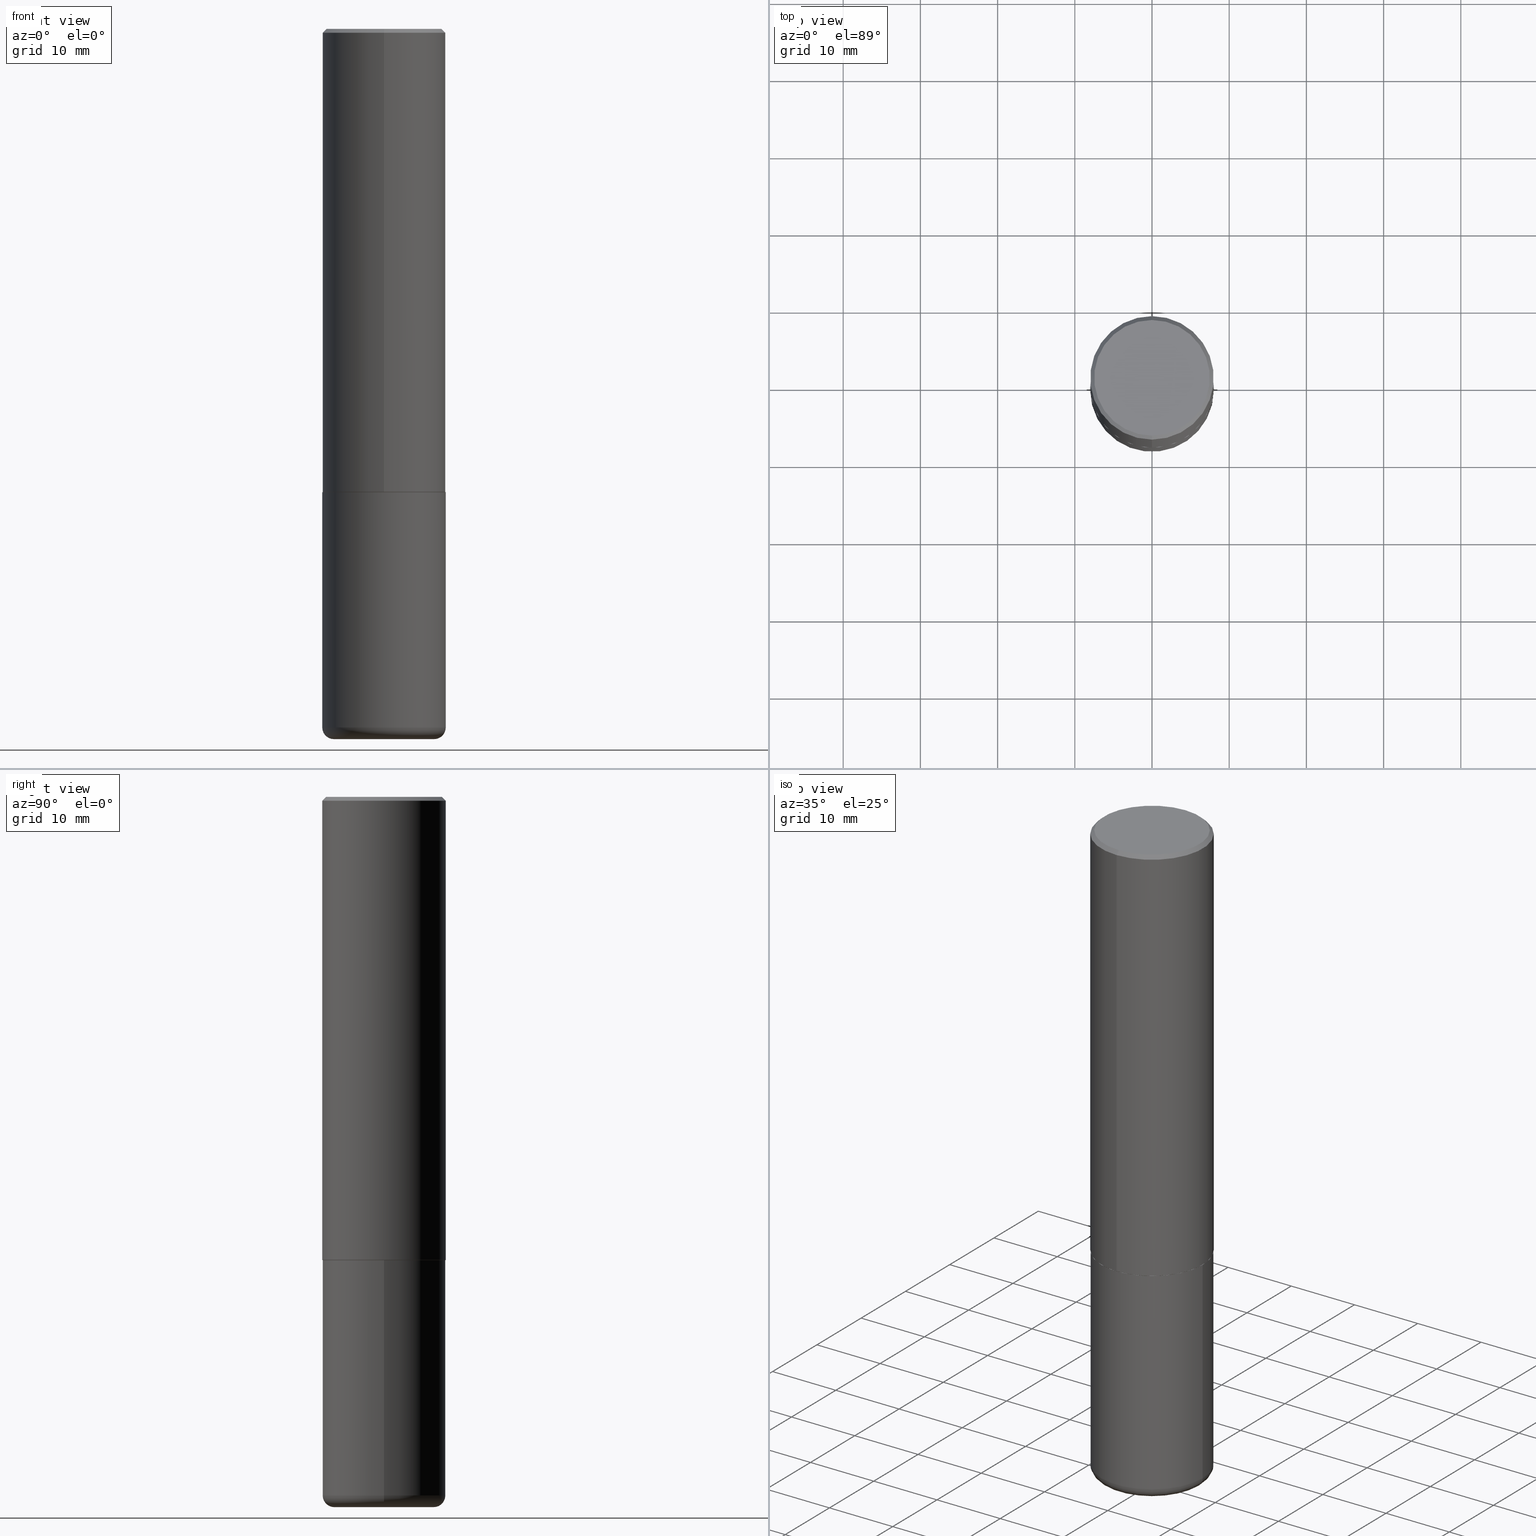
[diagram: canonical four-view strip — front | top / right | iso, engineering-drawing reading convention]
A machine part, canonical four-view strip (front | top / right | iso — engineering-drawing reading convention). The complete STEP part file that produces these views, byte-faithful:
ISO-10303-21;
HEADER;
FILE_DESCRIPTION (( 'STEP AP203' ),
    '1' );
FILE_NAME ('46121.STEP',
    '2024-03-04T18:01:01',
    ( '' ),
    ( '' ),
    'SwSTEP 2.0',
    'SolidWorks 2023',
    '' );
FILE_SCHEMA (( 'CONFIG_CONTROL_DESIGN' ));
ENDSEC;

DATA;
#1 = APPROVAL ( #52, 'UNSPECIFIED' ) ;
#2 = CARTESIAN_POINT ( 'NONE',  ( 2.199284095337289871E-15, 0.3149499999999999522, -0.02000000000000116615 ) ) ;
#3 = CLOSED_SHELL ( 'NONE', ( #23, #25, #58, #138, #406, #37 ) ) ;
#4 = CARTESIAN_POINT ( 'NONE',  ( 4.893737331859726542E-31, -6.978953320027303983E-17, -0.02000000000000006981 ) ) ;
#5 = VECTOR ( 'NONE', #63, 39.37007874015748143 ) ;
#6 = DIRECTION ( 'NONE',  ( -2.446868665929855214E-29, 3.489476660013640060E-15, 1.000000000000000000 ) ) ;
#7 = EDGE_LOOP ( 'NONE', ( #314, #278, #398, #179 ) ) ;
#8 = DIRECTION ( 'NONE',  ( 4.937700262164541731E-15, 0.7071067811865442421, -0.7071067811865507924 ) ) ;
#9 = ORIENTED_EDGE ( 'NONE', *, *, #122, .F. ) ;
#10 = EDGE_CURVE ( 'NONE', #24, #282, #75, .T. ) ;
#11 = DIRECTION ( 'NONE',  ( -6.982962677686264344E-15, -1.000000000000000000, 3.489476660013640060E-15 ) ) ;
#12 = AXIS2_PLACEMENT_3D ( 'NONE', #187, #29, #386 ) ;
#13 = ORIENTED_EDGE ( 'NONE', *, *, #243, .T. ) ;
#14 = CARTESIAN_POINT ( 'NONE',  ( 0.000000000000000000, 0.000000000000000000, 0.000000000000000000 ) ) ;
#15 = CARTESIAN_POINT ( 'NONE',  ( 0.3149500000000000077, -1.044686131395256792E-14, -2.362199999999999633 ) ) ;
#16 = DIRECTION ( 'NONE',  ( 1.000000000000000000, 0.000000000000000000, 0.000000000000000000 ) ) ;
#17 = VERTEX_POINT ( 'NONE', #15 ) ;
#18 = AXIS2_PLACEMENT_3D ( 'NONE', #153, #253, #256 ) ;
#19 =( CONVERSION_BASED_UNIT ( 'INCH', #105 ) LENGTH_UNIT ( ) NAMED_UNIT ( #277 ) );
#20 = ORIENTED_EDGE ( 'NONE', *, *, #332, .T. ) ;
#21 = CARTESIAN_POINT ( 'NONE',  ( 8.711248981392691651E-29, -1.243735482522705070E-14, -3.562199999999999367 ) ) ;
#22 = DIRECTION ( 'NONE',  ( -6.982962677686265922E-15, -1.000000000000000000, 3.469564049740290009E-15 ) ) ;
#23 = ADVANCED_FACE ( 'NONE', ( #142 ), #276, .T. ) ;
#24 = VERTEX_POINT ( 'NONE', #308 ) ;
#25 = ADVANCED_FACE ( 'NONE', ( #405 ), #182, .T. ) ;
#26 = AXIS2_PLACEMENT_3D ( 'NONE', #38, #72, #326 ) ;
#27 = CIRCLE ( 'NONE', #120, 0.3149500000000000077 ) ;
#28 = FACE_OUTER_BOUND ( 'NONE', #208, .T. ) ;
#29 = DIRECTION ( 'NONE',  ( -2.446868665929855214E-29, 3.489476660013640060E-15, 1.000000000000000000 ) ) ;
#30 = DIRECTION ( 'NONE',  ( -2.446868665929855214E-29, 3.489476660013640060E-15, 1.000000000000000000 ) ) ;
#31 = AXIS2_PLACEMENT_3D ( 'NONE', #4, #295, #261 ) ;
#32 = DIRECTION ( 'NONE',  ( -2.446868665929854653E-29, 3.489476660013640060E-15, 1.000000000000000000 ) ) ;
#33 = AXIS2_PLACEMENT_3D ( 'NONE', #263, #393, #100 ) ;
#34 = CARTESIAN_POINT ( 'NONE',  ( -6.043336042495066308E-45, 8.618394751845776021E-31, 2.469824444050611971E-16 ) ) ;
#35 = DIRECTION ( 'NONE',  ( -2.446868665929855494E-29, 3.489476660013640060E-15, 1.000000000000000000 ) ) ;
#36 = DATE_AND_TIME ( #290, #57 ) ;
#37 = ADVANCED_FACE ( 'NONE', ( #110 ), #345, .T. ) ;
#38 = CARTESIAN_POINT ( 'NONE',  ( 0.2551499999999999879, -1.421905775243870271E-14, -3.562199999999999367 ) ) ;
#39 = AXIS2_PLACEMENT_3D ( 'NONE', #191, #199, #335 ) ;
#40 = ORIENTED_EDGE ( 'NONE', *, *, #200, .T. ) ;
#41 = CARTESIAN_POINT ( 'NONE',  ( 4.893737331859726542E-31, -6.978953320027303983E-17, -0.02000000000000006981 ) ) ;
#42 = EDGE_LOOP ( 'NONE', ( #242, #347 ) ) ;
#43 = CARTESIAN_POINT ( 'NONE',  ( 0.000000000000000000, 0.000000000000000000, 0.000000000000000000 ) ) ;
#44 = AXIS2_PLACEMENT_3D ( 'NONE', #14, #339, #16 ) ;
#45 = CARTESIAN_POINT ( 'NONE',  ( -2.160713844398143363E-15, -0.3149500000000000632, -0.01999999999999896999 ) ) ;
#46 = ORIENTED_EDGE ( 'NONE', *, *, #399, .T. ) ;
#47 = AXIS2_PLACEMENT_3D ( 'NONE', #412, #154, #226 ) ;
#48 =( NAMED_UNIT ( * ) SI_UNIT ( $, .STERADIAN. ) SOLID_ANGLE_UNIT ( ) );
#49 = ORIENTED_EDGE ( 'NONE', *, *, #353, .T. ) ;
#50 = COORDINATED_UNIVERSAL_TIME_OFFSET ( 5, 0, .BEHIND. ) ;
#51 = ORIENTED_EDGE ( 'NONE', *, *, #369, .T. ) ;
#52 = APPROVAL_STATUS ( 'not_yet_approved' ) ;
#53 = ORIENTED_EDGE ( 'NONE', *, *, #232, .F. ) ;
#54 = EDGE_CURVE ( 'NONE', #97, #410, #287, .T. ) ;
#55 = CARTESIAN_POINT ( 'NONE',  ( -0.2551499999999999879, -1.051634804897429637E-14, -3.621999999999999886 ) ) ;
#56 = CARTESIAN_POINT ( 'NONE',  ( 5.777546293993573265E-29, -8.239352289624205249E-15, -2.361199999999999743 ) ) ;
#57 = LOCAL_TIME ( 13, 1, 1.000000000000000000, #95 ) ;
#58 = ADVANCED_FACE ( 'NONE', ( #158 ), #355, .F. ) ;
#59 = DIRECTION ( 'NONE',  ( -2.445468806185136877E-29, 3.491481338843145188E-15, 1.000000000000000000 ) ) ;
#60 = DIRECTION ( 'NONE',  ( -6.982962677686265922E-15, -1.000000000000000000, 3.489476660013640060E-15 ) ) ;
#61 = CALENDAR_DATE ( 2024, 4, 3 ) ;
#62 = CIRCLE ( 'NONE', #26, 0.05980000000000013777 ) ;
#63 = DIRECTION ( 'NONE',  ( -2.445468806185136877E-29, 3.491481338843145188E-15, 1.000000000000000000 ) ) ;
#64 = CARTESIAN_POINT ( 'NONE',  ( 4.893737331859726542E-31, -6.978953320027303983E-17, -0.02000000000000006981 ) ) ;
#65 = CARTESIAN_POINT ( 'NONE',  ( -0.3149500000000000077, -8.104611675644729966E-15, -2.362199999999999633 ) ) ;
#66 = ORIENTED_EDGE ( 'NONE', *, *, #218, .F. ) ;
#67 = APPLICATION_CONTEXT ( 'configuration controlled 3d designs of mechanical parts and assemblies' ) ;
#68 = DIRECTION ( 'NONE',  ( 6.982962677686265922E-15, 1.000000000000000000, -3.483117034309591132E-15 ) ) ;
#69 = CIRCLE ( 'NONE', #310, 0.3149500000000000632 ) ;
#70 = ORIENTED_EDGE ( 'NONE', *, *, #54, .F. ) ;
#71 = DIRECTION ( 'NONE',  ( 2.446868665929855214E-29, -3.489476660013640060E-15, -1.000000000000000000 ) ) ;
#72 = DIRECTION ( 'NONE',  ( -6.982962677686266711E-15, -1.000000000000000000, 3.491481338843145583E-15 ) ) ;
#73 = CC_DESIGN_DATE_AND_TIME_ASSIGNMENT ( #368, #76, ( #211 ) ) ;
#74 = ORIENTED_EDGE ( 'NONE', *, *, #173, .T. ) ;
#75 = CIRCLE ( 'NONE', #370, 0.3149500000000002853 ) ;
#76 = DATE_TIME_ROLE ( 'creation_date' ) ;
#77 = ORIENTED_EDGE ( 'NONE', *, *, #85, .F. ) ;
#78 = CC_DESIGN_APPROVAL ( #1, ( #269 ) ) ;
#79 = DIRECTION ( 'NONE',  ( -2.445468806185136597E-29, 3.491481338843145583E-15, 1.000000000000000000 ) ) ;
#80 = DATE_AND_TIME ( #307, #206 ) ;
#81 = DIRECTION ( 'NONE',  ( -2.445468806185136597E-29, 3.491481338843145583E-15, 1.000000000000000000 ) ) ;
#82 = ORIENTED_EDGE ( 'NONE', *, *, #92, .T. ) ;
#83 = ORIENTED_EDGE ( 'NONE', *, *, #384, .F. ) ;
#84 = CARTESIAN_POINT ( 'NONE',  ( 2.230748918918891775E-15, 0.3139499999999917357, -2.362200000000000966 ) ) ;
#85 = EDGE_CURVE ( 'NONE', #130, #176, #403, .T. ) ;
#86 = DIRECTION ( 'NONE',  ( 5.024295867787889629E-15, 0.7071067811865257013, 0.7071067811865691111 ) ) ;
#87 = CIRCLE ( 'NONE', #331, 0.2949499999999997679 ) ;
#88 = CARTESIAN_POINT ( 'NONE',  ( -2.192301132659545875E-15, -0.3139500000000082780, -2.362199999999998745 ) ) ;
#89 = CARTESIAN_POINT ( 'NONE',  ( -2.160713844398143363E-15, -0.3149500000000000632, -0.01999999999999896999 ) ) ;
#90 = CARTESIAN_POINT ( 'NONE',  ( 0.000000000000000000, 0.000000000000000000, 0.000000000000000000 ) ) ;
#91 = ADVANCED_FACE ( 'NONE', ( #220 ), #413, .F. ) ;
#92 = EDGE_CURVE ( 'NONE', #97, #293, #317, .T. ) ;
#93 = CIRCLE ( 'NONE', #12, 0.3139500000000000068 ) ;
#94 = DIRECTION ( 'NONE',  ( -6.982962677686265922E-15, -1.000000000000000000, 3.489476660013640060E-15 ) ) ;
#95 = COORDINATED_UNIVERSAL_TIME_OFFSET ( 5, 0, .BEHIND. ) ;
#96 = DIRECTION ( 'NONE',  ( 1.000000000000000000, -6.982962677686266711E-15, 0.000000000000000000 ) ) ;
#97 = VERTEX_POINT ( 'NONE', #289 ) ;
#98 = CC_DESIGN_DATE_AND_TIME_ASSIGNMENT ( #36, #325, ( #341 ) ) ;
#99 =( GEOMETRIC_REPRESENTATION_CONTEXT ( 3 ) GLOBAL_UNCERTAINTY_ASSIGNED_CONTEXT ( ( #229 ) ) GLOBAL_UNIT_ASSIGNED_CONTEXT ( ( #19, #111, #48 ) ) REPRESENTATION_CONTEXT ( 'NONE', 'WORKASPACE' ) );
#100 = DIRECTION ( 'NONE',  ( 1.000000000000000000, -6.982962677686268288E-15, 0.000000000000000000 ) ) ;
#101 = VERTEX_POINT ( 'NONE', #188 ) ;
#102 = DIRECTION ( 'NONE',  ( 1.000000000000000000, -6.982962677686268288E-15, 0.000000000000000000 ) ) ;
#103 = AXIS2_PLACEMENT_3D ( 'NONE', #354, #30, #286 ) ;
#104 = DIRECTION ( 'NONE',  ( -6.982962677686264344E-15, -1.000000000000000000, 3.489476660013640060E-15 ) ) ;
#105 = LENGTH_MEASURE_WITH_UNIT ( LENGTH_MEASURE( 0.02539999999999999897 ), #146 );
#106 = CALENDAR_DATE ( 2024, 4, 3 ) ;
#107 = ORIENTED_EDGE ( 'NONE', *, *, #399, .F. ) ;
#108 = AXIS2_PLACEMENT_3D ( 'NONE', #64, #71, #68 ) ;
#109 = CC_DESIGN_APPROVAL ( #114, ( #211 ) ) ;
#110 = FACE_OUTER_BOUND ( 'NONE', #312, .T. ) ;
#111 =( NAMED_UNIT ( * ) PLANE_ANGLE_UNIT ( ) SI_UNIT ( $, .RADIAN. ) );
#112 = VERTEX_POINT ( 'NONE', #284 ) ;
#113 = ORIENTED_EDGE ( 'NONE', *, *, #122, .T. ) ;
#114 = APPROVAL ( #141, 'UNSPECIFIED' ) ;
#115 = AXIS2_PLACEMENT_3D ( 'NONE', #257, #333, #96 ) ;
#116 = CARTESIAN_POINT ( 'NONE',  ( 5.779993162659504454E-29, -8.242841766284221502E-15, -2.362200000000000077 ) ) ;
#117 = CYLINDRICAL_SURFACE ( 'NONE', #184, 0.3149500000000000077 ) ;
#118 = LINE ( 'NONE', #155, #5 ) ;
#119 = EDGE_CURVE ( 'NONE', #162, #282, #288, .T. ) ;
#120 = AXIS2_PLACEMENT_3D ( 'NONE', #239, #330, #169 ) ;
#121 = CARTESIAN_POINT ( 'NONE',  ( 5.779993162659504454E-29, -8.242841766284221502E-15, -2.362200000000000077 ) ) ;
#122 = EDGE_CURVE ( 'NONE', #101, #361, #183, .T. ) ;
#123 = DIRECTION ( 'NONE',  ( -6.982962677686266711E-15, -1.000000000000000000, 3.480615376543096919E-15 ) ) ;
#124 = APPROVAL_ROLE ( '' ) ;
#125 = ADVANCED_FACE ( 'NONE', ( #285 ), #170, .T. ) ;
#126 = APPROVAL_PERSON_ORGANIZATION ( #203, #114, #304 ) ;
#127 = AXIS2_PLACEMENT_3D ( 'NONE', #217, #323, #415 ) ;
#128 = CC_DESIGN_PERSON_AND_ORGANIZATION_ASSIGNMENT ( #309, #322, ( #269 ) ) ;
#129 = FACE_OUTER_BOUND ( 'NONE', #340, .T. ) ;
#130 = VERTEX_POINT ( 'NONE', #55 ) ;
#131 = SECURITY_CLASSIFICATION_LEVEL ( 'unclassified' ) ;
#132 = DIRECTION ( 'NONE',  ( -6.982962677686265922E-15, -1.000000000000000000, 3.483117034309591132E-15 ) ) ;
#133 = ADVANCED_FACE ( 'NONE', ( #28 ), #382, .F. ) ;
#134 = EDGE_LOOP ( 'NONE', ( #374, #74, #20, #245 ) ) ;
#135 = CARTESIAN_POINT ( 'NONE',  ( 2.237854346276435985E-15, 0.3149500000000001743, -1.099010674071296500E-15 ) ) ;
#136 = ORIENTED_EDGE ( 'NONE', *, *, #324, .T. ) ;
#137 = LINE ( 'NONE', #135, #259 ) ;
#138 = ADVANCED_FACE ( 'NONE', ( #388 ), #117, .T. ) ;
#139 = APPLICATION_PROTOCOL_DEFINITION ( 'international standard', 'config_control_design', 1994, #67 ) ;
#140 = EDGE_CURVE ( 'NONE', #112, #17, #118, .T. ) ;
#141 = APPROVAL_STATUS ( 'not_yet_approved' ) ;
#142 = FACE_OUTER_BOUND ( 'NONE', #216, .T. ) ;
#143 = COORDINATED_UNIVERSAL_TIME_OFFSET ( 5, 0, .BEHIND. ) ;
#144 = DIRECTION ( 'NONE',  ( 1.000000000000000000, -6.982962677686266711E-15, 4.876176775795936353E-29 ) ) ;
#145 = VECTOR ( 'NONE', #35, 39.37007874015748143 ) ;
#146 =( LENGTH_UNIT ( ) NAMED_UNIT ( * ) SI_UNIT ( $, .METRE. ) );
#147 = ORIENTED_EDGE ( 'NONE', *, *, #222, .T. ) ;
#148 = CARTESIAN_POINT ( 'NONE',  ( 2.129454468560426178E-15, 0.2949499999999997679, -7.822386964659611296E-16 ) ) ;
#149 = CC_DESIGN_PERSON_AND_ORGANIZATION_ASSIGNMENT ( #401, #172, ( #211 ) ) ;
#150 = ORIENTED_EDGE ( 'NONE', *, *, #119, .T. ) ;
#151 = APPROVAL_DATE_TIME ( #227, #328 ) ;
#152 = LOCAL_TIME ( 13, 1, 1.000000000000000000, #404 ) ;
#153 = CARTESIAN_POINT ( 'NONE',  ( 8.857488016002564476E-29, -1.264614540928987199E-14, -3.621999999999999886 ) ) ;
#154 = DIRECTION ( 'NONE',  ( 2.446868665929854653E-29, -3.489476660013640060E-15, -1.000000000000000000 ) ) ;
#155 = CARTESIAN_POINT ( 'NONE',  ( 0.3149500000000000077, -2.199284095337289871E-15, 1.535751875536930130E-29 ) ) ;
#156 = CIRCLE ( 'NONE', #39, 0.3149500000000000077 ) ;
#157 = DIRECTION ( 'NONE',  ( -1.000000000000000000, 6.982962677686265922E-15, -4.876176775795935793E-29 ) ) ;
#158 = FACE_OUTER_BOUND ( 'NONE', #363, .T. ) ;
#159 = DIRECTION ( 'NONE',  ( -4.937700262164378437E-15, -0.7071067811865208164, 0.7071067811865739960 ) ) ;
#160 = AXIS2_PLACEMENT_3D ( 'NONE', #43, #165, #104 ) ;
#161 = CARTESIAN_POINT ( 'NONE',  ( -2.192301132659545875E-15, -0.3139500000000082780, -2.362199999999998745 ) ) ;
#162 = VERTEX_POINT ( 'NONE', #251 ) ;
#163 = AXIS2_PLACEMENT_3D ( 'NONE', #21, #178, #311 ) ;
#164 = LINE ( 'NONE', #161, #385 ) ;
#165 = DIRECTION ( 'NONE',  ( -2.446868665929855214E-29, 3.489476660013640060E-15, 1.000000000000000000 ) ) ;
#166 = APPLICATION_CONTEXT ( 'configuration controlled 3d designs of mechanical parts and assemblies' ) ;
#167 = EDGE_CURVE ( 'NONE', #282, #24, #177, .T. ) ;
#168 = PRODUCT ( '46121', '46121', '', ( #215 ) ) ;
#169 = DIRECTION ( 'NONE',  ( 1.000000000000000000, -6.982962677686266711E-15, 0.000000000000000000 ) ) ;
#170 = CONICAL_SURFACE ( 'NONE', #221, 0.3139500000000000068, 0.7853981633974141952 ) ;
#171 = ORIENTED_EDGE ( 'NONE', *, *, #384, .T. ) ;
#172 = PERSON_AND_ORGANIZATION_ROLE ( 'creator' ) ;
#173 = EDGE_CURVE ( 'NONE', #162, #180, #93, .T. ) ;
#174 = ORIENTED_EDGE ( 'NONE', *, *, #243, .F. ) ;
#175 = PERSON_AND_ORGANIZATION_ROLE ( 'creator' ) ;
#176 = VERTEX_POINT ( 'NONE', #255 ) ;
#177 = CIRCLE ( 'NONE', #346, 0.3149500000000002853 ) ;
#178 = DIRECTION ( 'NONE',  ( -2.445468806185136597E-29, 3.491481338843145583E-15, 1.000000000000000000 ) ) ;
#179 = ORIENTED_EDGE ( 'NONE', *, *, #369, .F. ) ;
#180 = VERTEX_POINT ( 'NONE', #88 ) ;
#181 = ORGANIZATION ( 'UNSPECIFIED', 'UNSPECIFIED', '' ) ;
#182 = TOROIDAL_SURFACE ( 'NONE', #372, 0.2551499999999999879, 0.05980000000000017246 ) ;
#183 = LINE ( 'NONE', #350, #189 ) ;
#184 = AXIS2_PLACEMENT_3D ( 'NONE', #90, #356, #352 ) ;
#185 = VECTOR ( 'NONE', #8, 39.37007874015748143 ) ;
#186 = CARTESIAN_POINT ( 'NONE',  ( 5.776686413970529753E-29, -8.247577218615278049E-15, -2.362199999999999633 ) ) ;
#187 = CARTESIAN_POINT ( 'NONE',  ( 5.779993162659504454E-29, -8.242841766284221502E-15, -2.362200000000000077 ) ) ;
#188 = CARTESIAN_POINT ( 'NONE',  ( -0.3149500000000001743, -1.019950047895061313E-14, -3.562199999999999367 ) ) ;
#189 = VECTOR ( 'NONE', #59, 39.37007874015748143 ) ;
#190 = CARTESIAN_POINT ( 'NONE',  ( 5.779993162659503333E-29, -8.242841766284219924E-15, -2.362199999999999633 ) ) ;
#191 = CARTESIAN_POINT ( 'NONE',  ( 4.893737331859726542E-31, -6.978953320027303983E-17, -0.02000000000000006981 ) ) ;
#192 = SHAPE_DEFINITION_REPRESENTATION ( #252, #219 ) ;
#193 = LINE ( 'NONE', #228, #145 ) ;
#194 = ORIENTED_EDGE ( 'NONE', *, *, #85, .T. ) ;
#195 = PERSON ( 'UNSPECIFIED', 'UNSPECIFIED', 'UNSPECIFIED', ('UNSPECIFIED'), ('UNSPECIFIED'), ('UNSPECIFIED') ) ;
#196 = DESIGN_CONTEXT ( 'detailed design', #67, 'design' ) ;
#197 = ADVANCED_FACE ( 'NONE', ( #223 ), #249, .T. ) ;
#198 = CARTESIAN_POINT ( 'NONE',  ( 2.237854346276465567E-15, 0.3149499999999920141, -2.361200000000000632 ) ) ;
#199 = DIRECTION ( 'NONE',  ( -2.446868665929855214E-29, 3.489476660013640060E-15, 1.000000000000000000 ) ) ;
#200 = EDGE_CURVE ( 'NONE', #180, #162, #204, .T. ) ;
#201 = CYLINDRICAL_SURFACE ( 'NONE', #414, 0.3149500000000001743 ) ;
#202 = ORIENTED_EDGE ( 'NONE', *, *, #232, .T. ) ;
#203 = PERSON_AND_ORGANIZATION ( #195, #181 ) ;
#204 = CIRCLE ( 'NONE', #301, 0.3139500000000000068 ) ;
#205 = ORIENTED_EDGE ( 'NONE', *, *, #140, .F. ) ;
#206 = LOCAL_TIME ( 13, 1, 1.000000000000000000, #50 ) ;
#207 = DATE_AND_TIME ( #400, #225 ) ;
#208 = EDGE_LOOP ( 'NONE', ( #136, #240 ) ) ;
#209 = APPROVAL_DATE_TIME ( #80, #1 ) ;
#210 = DIRECTION ( 'NONE',  ( 1.000000000000000000, -6.982962677686266711E-15, 4.883557194083112901E-29 ) ) ;
#211 = PRODUCT_DEFINITION ( 'UNKNOWN', '', #269, #196 ) ;
#212 = PERSON_AND_ORGANIZATION_ROLE ( 'design_owner' ) ;
#213 = ORIENTED_EDGE ( 'NONE', *, *, #306, .F. ) ;
#214 = AXIS2_PLACEMENT_3D ( 'NONE', #41, #6, #132 ) ;
#215 = MECHANICAL_CONTEXT ( 'NONE', #166, 'mechanical' ) ;
#216 = EDGE_LOOP ( 'NONE', ( #171, #113, #213, #205 ) ) ;
#217 = CARTESIAN_POINT ( 'NONE',  ( 8.857488016002564476E-29, -1.264614540928987199E-14, -3.621999999999999886 ) ) ;
#218 = EDGE_CURVE ( 'NONE', #361, #17, #27, .T. ) ;
#219 = ADVANCED_BREP_SHAPE_REPRESENTATION ( '46121', ( #367, #378, #44 ), #99 ) ;
#220 = FACE_OUTER_BOUND ( 'NONE', #42, .T. ) ;
#221 = AXIS2_PLACEMENT_3D ( 'NONE', #116, #416, #123 ) ;
#222 = EDGE_CURVE ( 'NONE', #282, #231, #137, .T. ) ;
#223 = FACE_OUTER_BOUND ( 'NONE', #377, .T. ) ;
#224 = DIRECTION ( 'NONE',  ( -2.446868665929855214E-29, 3.489476660013640060E-15, 1.000000000000000000 ) ) ;
#225 = LOCAL_TIME ( 13, 1, 1.000000000000000000, #143 ) ;
#226 = DIRECTION ( 'NONE',  ( 6.982962677686265922E-15, 1.000000000000000000, -3.489476660013640060E-15 ) ) ;
#227 = DATE_AND_TIME ( #61, #358 ) ;
#228 = CARTESIAN_POINT ( 'NONE',  ( -2.199284095337290265E-15, -0.3149500000000001743, 1.099010674071296500E-15 ) ) ;
#229 = UNCERTAINTY_MEASURE_WITH_UNIT (LENGTH_MEASURE( 1.000000000000000082E-05 ), #19, 'distance_accuracy_value', 'NONE');
#230 = DIRECTION ( 'NONE',  ( -2.445468806185136597E-29, 3.491481338843145583E-15, 1.000000000000000000 ) ) ;
#231 = VERTEX_POINT ( 'NONE', #2 ) ;
#232 = EDGE_CURVE ( 'NONE', #176, #112, #62, .T. ) ;
#233 = PERSON_AND_ORGANIZATION ( #195, #181 ) ;
#234 = CARTESIAN_POINT ( 'NONE',  ( 2.199284095337289871E-15, 0.3149499999999999522, -0.02000000000000116615 ) ) ;
#235 = CIRCLE ( 'NONE', #214, 0.3149500000000000077 ) ;
#236 = PRODUCT_RELATED_PRODUCT_CATEGORY ( 'detail', '', ( #168 ) ) ;
#237 = CARTESIAN_POINT ( 'NONE',  ( 8.857488016002564476E-29, -1.264614540928987199E-14, -3.621999999999999886 ) ) ;
#238 = CC_DESIGN_APPROVAL ( #328, ( #341 ) ) ;
#239 = CARTESIAN_POINT ( 'NONE',  ( 5.776686413970529753E-29, -8.247577218615278049E-15, -2.362199999999999633 ) ) ;
#240 = ORIENTED_EDGE ( 'NONE', *, *, #54, .T. ) ;
#241 = APPROVAL_DATE_TIME ( #207, #114 ) ;
#242 = ORIENTED_EDGE ( 'NONE', *, *, #200, .F. ) ;
#243 = EDGE_CURVE ( 'NONE', #176, #130, #396, .T. ) ;
#244 = DIRECTION ( 'NONE',  ( -1.000000000000000000, 7.105427357601017636E-15, 0.000000000000000000 ) ) ;
#245 = ORIENTED_EDGE ( 'NONE', *, *, #167, .F. ) ;
#246 = PERSON_AND_ORGANIZATION ( #195, #181 ) ;
#247 = CARTESIAN_POINT ( 'NONE',  ( 8.711248981392691651E-29, -1.243735482522705070E-14, -3.562199999999999367 ) ) ;
#248 = EDGE_LOOP ( 'NONE', ( #337, #381, #46, #51 ) ) ;
#249 = CONICAL_SURFACE ( 'NONE', #103, 0.3139500000000000068, 0.7853981633974141952 ) ;
#250 = DIRECTION ( 'NONE',  ( -6.982962677686265922E-15, -1.000000000000000000, 3.489476660013640060E-15 ) ) ;
#251 = CARTESIAN_POINT ( 'NONE',  ( 2.234301632597693067E-15, 0.3139499999999917357, -2.362200000000000966 ) ) ;
#252 = PRODUCT_DEFINITION_SHAPE ( 'NONE', 'NONE',  #211 ) ;
#253 = DIRECTION ( 'NONE',  ( -2.445468806185136597E-29, 3.491481338843145583E-15, 1.000000000000000000 ) ) ;
#254 = CONICAL_SURFACE ( 'NONE', #31, 0.3149500000000000077, 0.7853981633974471688 ) ;
#255 = CARTESIAN_POINT ( 'NONE',  ( 0.2551499999999999879, -1.442784833650152243E-14, -3.621999999999999886 ) ) ;
#256 = DIRECTION ( 'NONE',  ( 1.000000000000000000, -6.982962677686268288E-15, 0.000000000000000000 ) ) ;
#257 = CARTESIAN_POINT ( 'NONE',  ( 5.776686413970529753E-29, -8.247577218615278049E-15, -2.362199999999999633 ) ) ;
#258 = AXIS2_PLACEMENT_3D ( 'NONE', #237, #359, #102 ) ;
#259 = VECTOR ( 'NONE', #395, 39.37007874015748143 ) ;
#260 = ADVANCED_FACE ( 'NONE', ( #364 ), #201, .T. ) ;
#261 = DIRECTION ( 'NONE',  ( 6.982962677686265922E-15, 1.000000000000000000, -3.483117034309591132E-15 ) ) ;
#262 = PERSON_AND_ORGANIZATION ( #195, #181 ) ;
#263 = CARTESIAN_POINT ( 'NONE',  ( 8.711248981392691651E-29, -1.243735482522705070E-14, -3.562199999999999367 ) ) ;
#264 = CARTESIAN_POINT ( 'NONE',  ( 0.000000000000000000, 0.000000000000000000, 0.000000000000000000 ) ) ;
#265 = EDGE_LOOP ( 'NONE', ( #13, #366, #83, #53 ) ) ;
#266 = CIRCLE ( 'NONE', #33, 0.3149500000000000632 ) ;
#267 = DIRECTION ( 'NONE',  ( -2.446868665929855214E-29, 3.489476660013640060E-15, 1.000000000000000000 ) ) ;
#268 = ORIENTED_EDGE ( 'NONE', *, *, #10, .T. ) ;
#269 = PRODUCT_DEFINITION_FORMATION_WITH_SPECIFIED_SOURCE ( 'ANY', '', #168, .NOT_KNOWN. ) ;
#270 = ADVANCED_FACE ( 'NONE', ( #292 ), #380, .T. ) ;
#271 = CC_DESIGN_PERSON_AND_ORGANIZATION_ASSIGNMENT ( #344, #175, ( #269 ) ) ;
#272 = CARTESIAN_POINT ( 'NONE',  ( 0.000000000000000000, 0.000000000000000000, 0.000000000000000000 ) ) ;
#273 = APPLICATION_PROTOCOL_DEFINITION ( 'international standard', 'config_control_design', 1994, #166 ) ;
#274 = CIRCLE ( 'NONE', #115, 0.3149500000000000077 ) ;
#275 = EDGE_CURVE ( 'NONE', #293, #231, #156, .T. ) ;
#276 = CYLINDRICAL_SURFACE ( 'NONE', #294, 0.3149500000000000077 ) ;
#277 = DIMENSIONAL_EXPONENTS ( 1.000000000000000000, 0.000000000000000000, 0.000000000000000000, 0.000000000000000000, 0.000000000000000000, 0.000000000000000000, 0.000000000000000000 ) ;
#278 = ORIENTED_EDGE ( 'NONE', *, *, #167, .T. ) ;
#279 = DIRECTION ( 'NONE',  ( 7.105427357601001859E-15, 1.000000000000000000, -3.491481338843145583E-15 ) ) ;
#280 = EDGE_LOOP ( 'NONE', ( #409, #194, #202, #402 ) ) ;
#281 = CLOSED_SHELL ( 'NONE', ( #197, #291, #342, #270, #260, #125, #91, #133 ) ) ;
#282 = VERTEX_POINT ( 'NONE', #198 ) ;
#283 = CC_DESIGN_PERSON_AND_ORGANIZATION_ASSIGNMENT ( #302, #212, ( #168 ) ) ;
#284 = CARTESIAN_POINT ( 'NONE',  ( 0.3149500000000001743, -1.463663892056434215E-14, -3.562199999999999367 ) ) ;
#285 = FACE_OUTER_BOUND ( 'NONE', #134, .T. ) ;
#286 = DIRECTION ( 'NONE',  ( -6.982962677686266711E-15, -1.000000000000000000, 3.480615376543096919E-15 ) ) ;
#287 = CIRCLE ( 'NONE', #390, 0.2949499999999997679 ) ;
#288 = LINE ( 'NONE', #84, #316 ) ;
#289 = CARTESIAN_POINT ( 'NONE',  ( -2.092108864420427242E-15, -0.2949499999999997679, 1.276203585276083425E-15 ) ) ;
#290 = CALENDAR_DATE ( 2024, 4, 3 ) ;
#291 = ADVANCED_FACE ( 'NONE', ( #397 ), #336, .T. ) ;
#292 = FACE_OUTER_BOUND ( 'NONE', #248, .T. ) ;
#293 = VERTEX_POINT ( 'NONE', #45 ) ;
#294 = AXIS2_PLACEMENT_3D ( 'NONE', #272, #79, #144 ) ;
#295 = DIRECTION ( 'NONE',  ( 2.446868665929855214E-29, -3.489476660013640060E-15, -1.000000000000000000 ) ) ;
#296 = TOROIDAL_SURFACE ( 'NONE', #163, 0.2551499999999999879, 0.05980000000000017246 ) ;
#297 = ORIENTED_EDGE ( 'NONE', *, *, #218, .T. ) ;
#298 = LINE ( 'NONE', #234, #185 ) ;
#299 = EDGE_LOOP ( 'NONE', ( #9, #49, #371, #66 ) ) ;
#300 = DIRECTION ( 'NONE',  ( -6.982962677686266711E-15, -1.000000000000000000, 3.480615376543096919E-15 ) ) ;
#301 = AXIS2_PLACEMENT_3D ( 'NONE', #121, #362, #300 ) ;
#302 = PERSON_AND_ORGANIZATION ( #195, #181 ) ;
#303 = ORIENTED_EDGE ( 'NONE', *, *, #275, .T. ) ;
#304 = APPROVAL_ROLE ( '' ) ;
#305 = DIRECTION ( 'NONE',  ( -2.446868665929855214E-29, 3.489476660013640060E-15, 1.000000000000000000 ) ) ;
#306 = EDGE_CURVE ( 'NONE', #17, #361, #274, .T. ) ;
#307 = CALENDAR_DATE ( 2024, 4, 3 ) ;
#308 = CARTESIAN_POINT ( 'NONE',  ( -2.199284095337233467E-15, -0.3149500000000085564, -2.361199999999998411 ) ) ;
#309 = PERSON_AND_ORGANIZATION ( #195, #181 ) ;
#310 = AXIS2_PLACEMENT_3D ( 'NONE', #391, #230, #360 ) ;
#311 = DIRECTION ( 'NONE',  ( 1.000000000000000000, -6.982962677686266711E-15, 4.883557194083112901E-29 ) ) ;
#312 = EDGE_LOOP ( 'NONE', ( #174, #77 ) ) ;
#313 = COORDINATED_UNIVERSAL_TIME_OFFSET ( 5, 0, .BEHIND. ) ;
#314 = ORIENTED_EDGE ( 'NONE', *, *, #222, .F. ) ;
#315 = CC_DESIGN_PERSON_AND_ORGANIZATION_ASSIGNMENT ( #262, #327, ( #341 ) ) ;
#316 = VECTOR ( 'NONE', #86, 39.37007874015748854 ) ;
#317 = LINE ( 'NONE', #89, #357 ) ;
#318 = CC_DESIGN_SECURITY_CLASSIFICATION ( #341, ( #269 ) ) ;
#319 = DIRECTION ( 'NONE',  ( -6.982962677686265922E-15, -1.000000000000000000, 3.469564049740290009E-15 ) ) ;
#320 = DIRECTION ( 'NONE',  ( -4.851104656540957964E-15, -0.7071067811865491270, -0.7071067811865459074 ) ) ;
#321 = DIRECTION ( 'NONE',  ( 2.438088387897960049E-29, -3.491481338843145188E-15, -1.000000000000000000 ) ) ;
#322 = PERSON_AND_ORGANIZATION_ROLE ( 'design_supplier' ) ;
#323 = DIRECTION ( 'NONE',  ( 2.438088387897960049E-29, -3.491481338843145188E-15, -1.000000000000000000 ) ) ;
#324 = EDGE_CURVE ( 'NONE', #410, #97, #87, .T. ) ;
#325 = DATE_TIME_ROLE ( 'classification_date' ) ;
#326 = DIRECTION ( 'NONE',  ( 1.000000000000000000, -6.982962677686261189E-15, 0.000000000000000000 ) ) ;
#327 = PERSON_AND_ORGANIZATION_ROLE ( 'classification_officer' ) ;
#328 = APPROVAL ( #349, 'UNSPECIFIED' ) ;
#329 = EDGE_CURVE ( 'NONE', #24, #293, #193, .T. ) ;
#330 = DIRECTION ( 'NONE',  ( -2.445468806185136597E-29, 3.491481338843145583E-15, 1.000000000000000000 ) ) ;
#331 = AXIS2_PLACEMENT_3D ( 'NONE', #365, #389, #94 ) ;
#332 = EDGE_CURVE ( 'NONE', #180, #24, #164, .T. ) ;
#333 = DIRECTION ( 'NONE',  ( -2.445468806185136597E-29, 3.491481338843145583E-15, 1.000000000000000000 ) ) ;
#334 = EDGE_LOOP ( 'NONE', ( #268, #147, #348, #394 ) ) ;
#335 = DIRECTION ( 'NONE',  ( -6.982962677686265922E-15, -1.000000000000000000, 3.483117034309591132E-15 ) ) ;
#336 = CYLINDRICAL_SURFACE ( 'NONE', #160, 0.3149500000000001743 ) ;
#337 = ORIENTED_EDGE ( 'NONE', *, *, #92, .F. ) ;
#338 = AXIS2_PLACEMENT_3D ( 'NONE', #190, #32, #60 ) ;
#339 = DIRECTION ( 'NONE',  ( 0.000000000000000000, 0.000000000000000000, 1.000000000000000000 ) ) ;
#340 = EDGE_LOOP ( 'NONE', ( #70, #82, #303, #107 ) ) ;
#341 = SECURITY_CLASSIFICATION ( '', '', #131 ) ;
#342 = ADVANCED_FACE ( 'NONE', ( #129 ), #254, .T. ) ;
#343 = ORIENTED_EDGE ( 'NONE', *, *, #332, .F. ) ;
#344 = PERSON_AND_ORGANIZATION ( #195, #181 ) ;
#345 = PLANE ( 'NONE',  #127 ) ;
#346 = AXIS2_PLACEMENT_3D ( 'NONE', #56, #383, #319 ) ;
#347 = ORIENTED_EDGE ( 'NONE', *, *, #173, .F. ) ;
#348 = ORIENTED_EDGE ( 'NONE', *, *, #275, .F. ) ;
#349 = APPROVAL_STATUS ( 'not_yet_approved' ) ;
#350 = CARTESIAN_POINT ( 'NONE',  ( -0.3149500000000000077, 2.237854346276435590E-15, -1.549218606675782676E-29 ) ) ;
#351 = AXIS2_PLACEMENT_3D ( 'NONE', #186, #321, #157 ) ;
#352 = DIRECTION ( 'NONE',  ( 1.000000000000000000, -6.982962677686266711E-15, 4.876176775795936353E-29 ) ) ;
#353 = EDGE_CURVE ( 'NONE', #101, #112, #69, .T. ) ;
#354 = CARTESIAN_POINT ( 'NONE',  ( 5.779993162659504454E-29, -8.242841766284221502E-15, -2.362200000000000077 ) ) ;
#355 = PLANE ( 'NONE',  #351 ) ;
#356 = DIRECTION ( 'NONE',  ( -2.445468806185136597E-29, 3.491481338843145583E-15, 1.000000000000000000 ) ) ;
#357 = VECTOR ( 'NONE', #320, 39.37007874015748143 ) ;
#358 = LOCAL_TIME ( 13, 1, 1.000000000000000000, #313 ) ;
#359 = DIRECTION ( 'NONE',  ( -2.445468806185136597E-29, 3.491481338843145583E-15, 1.000000000000000000 ) ) ;
#360 = DIRECTION ( 'NONE',  ( 1.000000000000000000, -6.982962677686268288E-15, 0.000000000000000000 ) ) ;
#361 = VERTEX_POINT ( 'NONE', #65 ) ;
#362 = DIRECTION ( 'NONE',  ( -2.446868665929855214E-29, 3.489476660013640060E-15, 1.000000000000000000 ) ) ;
#363 = EDGE_LOOP ( 'NONE', ( #392, #297 ) ) ;
#364 = FACE_OUTER_BOUND ( 'NONE', #7, .T. ) ;
#365 = CARTESIAN_POINT ( 'NONE',  ( -6.043336042495066308E-45, 8.618394751845776021E-31, 2.469824444050611971E-16 ) ) ;
#366 = ORIENTED_EDGE ( 'NONE', *, *, #417, .T. ) ;
#367 = MANIFOLD_SOLID_BREP ( 'Body-Move/Copy2[1]', #3 ) ;
#368 = DATE_AND_TIME ( #106, #152 ) ;
#369 = EDGE_CURVE ( 'NONE', #231, #293, #235, .T. ) ;
#370 = AXIS2_PLACEMENT_3D ( 'NONE', #408, #305, #22 ) ;
#371 = ORIENTED_EDGE ( 'NONE', *, *, #140, .T. ) ;
#372 = AXIS2_PLACEMENT_3D ( 'NONE', #247, #81, #210 ) ;
#373 = APPROVAL_ROLE ( '' ) ;
#374 = ORIENTED_EDGE ( 'NONE', *, *, #119, .F. ) ;
#375 = APPROVAL_PERSON_ORGANIZATION ( #233, #328, #124 ) ;
#376 = ORIENTED_EDGE ( 'NONE', *, *, #10, .F. ) ;
#377 = EDGE_LOOP ( 'NONE', ( #40, #150, #376, #343 ) ) ;
#378 = MANIFOLD_SOLID_BREP ( 'Body-Move/Copy2[2]', #281 ) ;
#379 = CARTESIAN_POINT ( 'NONE',  ( -0.2551499999999999879, -1.062440503493515516E-14, -3.562199999999999367 ) ) ;
#380 = CONICAL_SURFACE ( 'NONE', #108, 0.3149500000000000077, 0.7853981633974471688 ) ;
#381 = ORIENTED_EDGE ( 'NONE', *, *, #324, .F. ) ;
#382 = PLANE ( 'NONE',  #47 ) ;
#383 = DIRECTION ( 'NONE',  ( -2.446868665929855214E-29, 3.489476660013640060E-15, 1.000000000000000000 ) ) ;
#384 = EDGE_CURVE ( 'NONE', #112, #101, #266, .T. ) ;
#385 = VECTOR ( 'NONE', #159, 39.37007874015748854 ) ;
#386 = DIRECTION ( 'NONE',  ( -6.982962677686266711E-15, -1.000000000000000000, 3.480615376543096919E-15 ) ) ;
#387 = CIRCLE ( 'NONE', #418, 0.05980000000000013777 ) ;
#388 = FACE_OUTER_BOUND ( 'NONE', #299, .T. ) ;
#389 = DIRECTION ( 'NONE',  ( -2.446868665929855214E-29, 3.489476660013640060E-15, 1.000000000000000000 ) ) ;
#390 = AXIS2_PLACEMENT_3D ( 'NONE', #34, #224, #250 ) ;
#391 = CARTESIAN_POINT ( 'NONE',  ( 8.711248981392691651E-29, -1.243735482522705070E-14, -3.562199999999999367 ) ) ;
#392 = ORIENTED_EDGE ( 'NONE', *, *, #306, .T. ) ;
#393 = DIRECTION ( 'NONE',  ( -2.445468806185136597E-29, 3.491481338843145583E-15, 1.000000000000000000 ) ) ;
#394 = ORIENTED_EDGE ( 'NONE', *, *, #329, .F. ) ;
#395 = DIRECTION ( 'NONE',  ( -2.446868665929855494E-29, 3.489476660013640060E-15, 1.000000000000000000 ) ) ;
#396 = CIRCLE ( 'NONE', #258, 0.2551499999999999879 ) ;
#397 = FACE_OUTER_BOUND ( 'NONE', #334, .T. ) ;
#398 = ORIENTED_EDGE ( 'NONE', *, *, #329, .T. ) ;
#399 = EDGE_CURVE ( 'NONE', #410, #231, #298, .T. ) ;
#400 = CALENDAR_DATE ( 2024, 4, 3 ) ;
#401 = PERSON_AND_ORGANIZATION ( #195, #181 ) ;
#402 = ORIENTED_EDGE ( 'NONE', *, *, #353, .F. ) ;
#403 = CIRCLE ( 'NONE', #18, 0.2551499999999999879 ) ;
#404 = COORDINATED_UNIVERSAL_TIME_OFFSET ( 5, 0, .BEHIND. ) ;
#405 = FACE_OUTER_BOUND ( 'NONE', #265, .T. ) ;
#406 = ADVANCED_FACE ( 'NONE', ( #407 ), #296, .T. ) ;
#407 = FACE_OUTER_BOUND ( 'NONE', #280, .T. ) ;
#408 = CARTESIAN_POINT ( 'NONE',  ( 5.777546293993573265E-29, -8.239352289624205249E-15, -2.361199999999999743 ) ) ;
#409 = ORIENTED_EDGE ( 'NONE', *, *, #417, .F. ) ;
#410 = VERTEX_POINT ( 'NONE', #148 ) ;
#411 = APPROVAL_PERSON_ORGANIZATION ( #246, #1, #373 ) ;
#412 = CARTESIAN_POINT ( 'NONE',  ( 2.059624841783562486E-15, 0.2949499999999997679, -9.057299186684915802E-16 ) ) ;
#413 = PLANE ( 'NONE',  #338 ) ;
#414 = AXIS2_PLACEMENT_3D ( 'NONE', #264, #267, #11 ) ;
#415 = DIRECTION ( 'NONE',  ( -1.000000000000000000, 6.982962677686265922E-15, -4.876176775795935793E-29 ) ) ;
#416 = DIRECTION ( 'NONE',  ( -2.446868665929855214E-29, 3.489476660013640060E-15, 1.000000000000000000 ) ) ;
#417 = EDGE_CURVE ( 'NONE', #130, #101, #387, .T. ) ;
#418 = AXIS2_PLACEMENT_3D ( 'NONE', #379, #279, #244 ) ;
ENDSEC;
END-ISO-10303-21;
